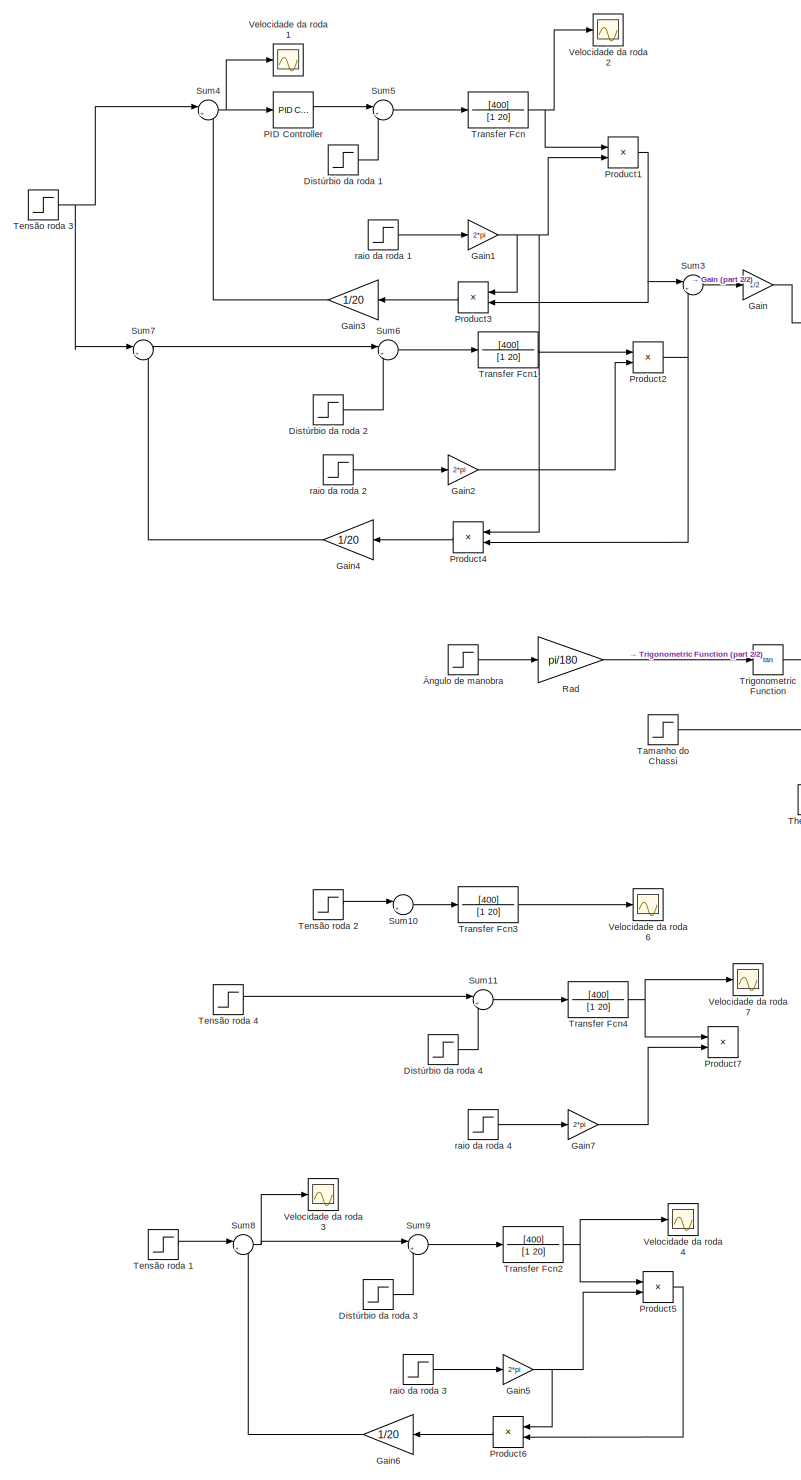
[diagram: root canvas - part 1/2, left side, full height]
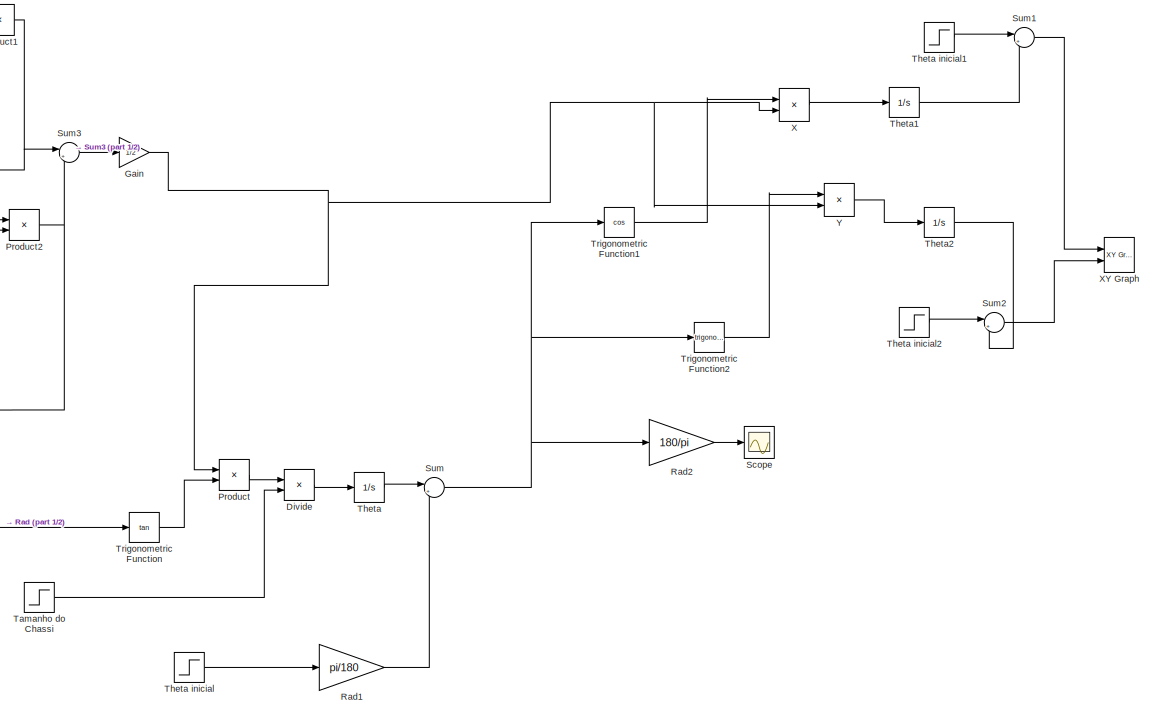
[diagram: root canvas - part 2/2, middle right region]
MODEL slx_e3606d816843
KIND model
CONFIG AbsTol = auto
CONFIG EnableMultiTasking = on
CONFIG FixedStep = auto
CONFIG MaxStep = auto
CONFIG MinStep = auto
CONFIG RelTol = 1e-3
CONFIG SampleTimeConstraint = Unconstrained
CONFIG Solver = ode45
CONFIG SolverName = ode45
CONFIG StartTime = 0.0
CONFIG StopTime = 10
BLOCK [Step] Distúrbio da roda 1
  After = 0.4
  SampleTime = 0
  Time = 0
BLOCK [Step] Distúrbio da roda 2
  After = 0
  SampleTime = 0
  Time = 0
BLOCK [Step] Distúrbio da roda 3
  After = 0
  SampleTime = 0
  Time = 0
BLOCK [Step] Distúrbio da roda 4
  After = 0
  SampleTime = 0
  Time = 0
BLOCK [Product] Divide
  Inputs = */
  Ports = [2, 1]
BLOCK [Gain] Gain
  Gain = 1/2
BLOCK [Gain] Gain1
  Gain = 2*pi
BLOCK [Gain] Gain2
  Gain = 2*pi
BLOCK [Gain] Gain3
  Gain = 1/20
BLOCK [Gain] Gain4
  Gain = 1/20
BLOCK [Gain] Gain5
  Gain = 2*pi
BLOCK [Gain] Gain6
  Gain = 1/20
BLOCK [Gain] Gain7
  Gain = 2*pi
BLOCK [Reference] PID Controller  REF=simulink/Continuous/PID Controller
  Ports = [1, 1]
  SourceBlock = simulink/Continuous/PID Controller
  SourceProductBaseCode = SL
  SourceType = PID 1dof
BLOCK [Product] Product
  Ports = [2, 1]
BLOCK [Product] Product1
  Ports = [2, 1]
BLOCK [Product] Product2
  Ports = [2, 1]
BLOCK [Product] Product3
  Inputs = /*
  Ports = [2, 1]
BLOCK [Product] Product4
  Inputs = /*
  Ports = [2, 1]
BLOCK [Product] Product5
  Ports = [2, 1]
BLOCK [Product] Product6
  Inputs = /*
  Ports = [2, 1]
BLOCK [Product] Product7
  Ports = [2, 1]
BLOCK [Gain] Rad
  Gain = pi/180
BLOCK [Gain] Rad1
  Gain = pi/180
BLOCK [Gain] Rad2
  Gain = 180/pi
BLOCK [Scope] Scope
  Floating = off
  NumInputPorts = 1
  Ports = [1]
  ScopeSpecificationString = C++SS(StrPVP('Location','[1, 49, 1601, 859]'),StrPVP('Open','off'),MxPVP('AxesTitles',54,'struct(''axes1'',''%<SignalLabel>'')'),MxPVP('ScopeGraphics',57,'struct(''FigureColor'',''[0.5 0.5 0.5]'',''AxesColor'',''[0 0 0]'',''AxesTickColor'',''[1 1 1]'',''LineColors'',''[1 1 0;1 0 1;0 1 1;1 0 0;0 1 0;0 0 1]'',''LineStyles'',''-|-|-|-|-|-'',''LineWidths'',''[0.5 0.5 0.5 0.5 0.5 0.5]'',''MarkerStyles'...<+237ch>
BLOCK [Sum] Sum
  Inputs = |++
  Ports = [2, 1]
BLOCK [Sum] Sum1
  Inputs = |++
  Ports = [2, 1]
BLOCK [Sum] Sum10
  Inputs = |+-
  Ports = [2, 1]
BLOCK [Sum] Sum11
  Inputs = |++
  Ports = [2, 1]
BLOCK [Sum] Sum2
  Inputs = |++
  Ports = [2, 1]
BLOCK [Sum] Sum3
  Inputs = |++
  Ports = [2, 1]
BLOCK [Sum] Sum4
  Inputs = |+-
  Ports = [2, 1]
BLOCK [Sum] Sum5
  Inputs = |++
  Ports = [2, 1]
BLOCK [Sum] Sum6
  Inputs = |++
  Ports = [2, 1]
BLOCK [Sum] Sum7
  Inputs = |+-
  Ports = [2, 1]
BLOCK [Sum] Sum8
  Inputs = |+-
  Ports = [2, 1]
BLOCK [Sum] Sum9
  Inputs = |++
  Ports = [2, 1]
BLOCK [Step] Tamanho do Chassi
  After = 0.44
  SampleTime = 0
  Time = 0
BLOCK [Step] Tensão roda 1
  SampleTime = 0
  Time = 0
BLOCK [Step] Tensão roda 2
  SampleTime = 0
BLOCK [Step] Tensão roda 3
  SampleTime = 0
  Time = 0
BLOCK [Step] Tensão roda 4
  SampleTime = 0
  Time = 0
BLOCK [Integrator] Theta
  Ports = [1, 1]
BLOCK [Step] Theta inicial
  After = 0
  SampleTime = 0
  Time = 0
BLOCK [Step] Theta inicial1
  After = 0
  SampleTime = 0
  Time = 0
BLOCK [Step] Theta inicial2
  After = 0
  SampleTime = 0
  Time = 0
BLOCK [Integrator] Theta1
  Ports = [1, 1]
BLOCK [Integrator] Theta2
  Ports = [1, 1]
BLOCK [TransferFcn] Transfer Fcn
  Denominator = [1 20]
  Numerator = [400]
BLOCK [TransferFcn] Transfer Fcn1
  Denominator = [1 20]
  Numerator = [400]
BLOCK [TransferFcn] Transfer Fcn2
  Denominator = [1 20]
  Numerator = [400]
BLOCK [TransferFcn] Transfer Fcn3
  Denominator = [1 20]
  Numerator = [400]
BLOCK [TransferFcn] Transfer Fcn4
  Denominator = [1 20]
  Numerator = [400]
BLOCK [Trigonometry] Trigonometric Function
  Operator = tan
  Ports = [1, 1]
BLOCK [Trigonometry] Trigonometric Function1
  Operator = cos
  Ports = [1, 1]
BLOCK [Trigonometry] Trigonometric Function2
  Ports = [1, 1]
BLOCK [Scope] Velocidade da roda 1
  Floating = off
  NumInputPorts = 1
  Ports = [1]
  ScopeSpecificationString = Simulink.scopes.TimeScopeBlockCfg('CurrentConfiguration', extmgr.ConfigurationSet(extmgr.Configuration('Core','General UI',true),extmgr.Configuration('Core','Source UI',true),extmgr.Configuration('Sources','WiredSimulink',true,'DataLoggingVariableName','ScopeData1'),extmgr.Configuration('Visuals','Time Domain',true,'SerializedDisplays',{struct('MinYLimReal','-0.12487','MaxYLimReal','1.12499','YLab...<+1716ch>
BLOCK [Scope] Velocidade da roda 2
  Floating = off
  NumInputPorts = 1
  Ports = [1]
  ScopeSpecificationString = Simulink.scopes.TimeScopeBlockCfg('CurrentConfiguration', extmgr.ConfigurationSet(extmgr.Configuration('Core','General UI',true),extmgr.Configuration('Core','Source UI',true),extmgr.Configuration('Sources','WiredSimulink',true,'DataLoggingVariableName','ScopeData2'),extmgr.Configuration('Visuals','Time Domain',true,'SerializedDisplays',{struct('MinYLimReal','-2.4997','MaxYLimReal','22.49733','YLab...<+1751ch>
BLOCK [Scope] Velocidade da roda 3
  Floating = off
  NumInputPorts = 1
  Ports = [1]
  ScopeSpecificationString = Simulink.scopes.TimeScopeBlockCfg('CurrentConfiguration', extmgr.ConfigurationSet(extmgr.Configuration('Core','General UI',true),extmgr.Configuration('Core','Source UI',true),extmgr.Configuration('Sources','WiredSimulink',true,'DataLoggingVariableName','ScopeData2'),extmgr.Configuration('Visuals','Time Domain',true,'SerializedDisplays',{struct('MinYLimReal','0.4375','MaxYLimReal','1.0625','YLabelR...<+1731ch>
BLOCK [Scope] Velocidade da roda 4
  Floating = off
  NumInputPorts = 1
  Ports = [1]
  ScopeSpecificationString = Simulink.scopes.TimeScopeBlockCfg('CurrentConfiguration', extmgr.ConfigurationSet(extmgr.Configuration('Core','General UI',true),extmgr.Configuration('Core','Source UI',true),extmgr.Configuration('Sources','WiredSimulink',true,'DataLoggingVariableName','ScopeData3'),extmgr.Configuration('Visuals','Time Domain',true,'SerializedDisplays',{struct('MinYLimReal','9.87798','MaxYLimReal','10.11365','YLab...<+1771ch>
BLOCK [Scope] Velocidade da roda 6
  Floating = off
  NumInputPorts = 1
  Ports = [1]
  ScopeSpecificationString = Simulink.scopes.TimeScopeBlockCfg('CurrentConfiguration', extmgr.ConfigurationSet(extmgr.Configuration('Core','General UI',true),extmgr.Configuration('Core','Source UI',true),extmgr.Configuration('Sources','WiredSimulink',true,'DataLoggingVariableName','ScopeData5'),extmgr.Configuration('Visuals','Time Domain',true,'SerializedDisplays',{struct('MinYLimReal','-0.000011','MaxYLimReal','0.000057','YL...<+1777ch>
BLOCK [Scope] Velocidade da roda 7
  Floating = off
  NumInputPorts = 1
  Ports = [1]
  ScopeSpecificationString = Simulink.scopes.TimeScopeBlockCfg('CurrentConfiguration', extmgr.ConfigurationSet(extmgr.Configuration('Core','General UI',true),extmgr.Configuration('Core','Source UI',true),extmgr.Configuration('Sources','WiredSimulink',true,'DataLoggingVariableName','ScopeData6'),extmgr.Configuration('Visuals','Time Domain',true,'SerializedDisplays',{struct('MinYLimReal','-1.4868','MaxYLimReal','13.38121','YLab...<+1701ch>
BLOCK [Product] X
  Ports = [2, 1]
BLOCK [Reference] XY Graph  REF=simulink/Sinks/XY Graph
  Ports = [2]
  SourceBlock = simulink/Sinks/XY Graph
  SourceProductBaseCode = SL
  SourceType = XY scope.
BLOCK [Product] Y
  Ports = [2, 1]
BLOCK [Step] raio da roda 1
  After = 0.080
  SampleTime = 0
  Time = 0
BLOCK [Step] raio da roda 2
  After = 0.080
  SampleTime = 0
  Time = 0
BLOCK [Step] raio da roda 3
  After = 0.080
  SampleTime = 0
  Time = 0
BLOCK [Step] raio da roda 4
  After = 0.080
  SampleTime = 0
  Time = 0
BLOCK [Step] Ângulo de manobra
  After = 30
  SampleTime = 0
  Time = 0
LINE Distúrbio da roda 1:1 -> Sum5:2
LINE Distúrbio da roda 2:1 -> Sum6:2
LINE Distúrbio da roda 3:1 -> Sum9:2
LINE Distúrbio da roda 4:1 -> Sum11:2
LINE Divide:1 -> Theta:1
NET Gain1:1 -> Product1:2, Product3:1, Product4:1
LINE Gain2:1 -> Product2:2
LINE Gain3:1 -> Sum4:2
LINE Gain4:1 -> Sum7:2
NET Gain5:1 -> Product5:2, Product6:1
LINE Gain6:1 -> Sum8:2
LINE Gain7:1 -> Product7:2
NET Gain:1 -> Product:1, X:2, Y:2
LINE PID Controller:1 -> Sum5:1
NET Product1:1 -> Product3:2, Sum3:1
NET Product2:1 -> Product4:2, Sum3:2
LINE Product3:1 -> Gain3:1
LINE Product4:1 -> Gain4:1
LINE Product5:1 -> Product6:2
LINE Product6:1 -> Gain6:1
LINE Product:1 -> Divide:1
LINE Rad1:1 -> Sum:2
LINE Rad2:1 -> Scope:1
LINE Rad:1 -> Trigonometric Function:1
LINE Sum10:1 -> Transfer Fcn3:1
LINE Sum11:1 -> Transfer Fcn4:1
LINE Sum1:1 -> XY Graph:1
LINE Sum2:1 -> XY Graph:2
LINE Sum3:1 -> Gain:1
NET Sum4:1 -> PID Controller:1, Velocidade da roda 1:1
LINE Sum5:1 -> Transfer Fcn:1
LINE Sum6:1 -> Transfer Fcn1:1
LINE Sum7:1 -> Sum6:1
NET Sum8:1 -> Sum9:1, Velocidade da roda 3:1
LINE Sum9:1 -> Transfer Fcn2:1
NET Sum:1 -> Rad2:1, Trigonometric Function1:1, Trigonometric Function2:1
LINE Tamanho do Chassi:1 -> Divide:2
LINE Tensão roda 1:1 -> Sum8:1
LINE Tensão roda 2:1 -> Sum10:1
NET Tensão roda 3:1 -> Sum4:1, Sum7:1
LINE Tensão roda 4:1 -> Sum11:1
LINE Theta inicial1:1 -> Sum1:1
LINE Theta inicial2:1 -> Sum2:1
LINE Theta inicial:1 -> Rad1:1
LINE Theta1:1 -> Sum1:2
LINE Theta2:1 -> Sum2:2
LINE Theta:1 -> Sum:1
LINE Transfer Fcn1:1 -> Product2:1
NET Transfer Fcn2:1 -> Product5:1, Velocidade da roda 4:1
LINE Transfer Fcn3:1 -> Velocidade da roda 6:1
NET Transfer Fcn4:1 -> Product7:1, Velocidade da roda 7:1
NET Transfer Fcn:1 -> Product1:1, Velocidade da roda 2:1
LINE Trigonometric Function1:1 -> X:1
LINE Trigonometric Function2:1 -> Y:1
LINE Trigonometric Function:1 -> Product:2
LINE X:1 -> Theta1:1
LINE Y:1 -> Theta2:1
LINE raio da roda 1:1 -> Gain1:1
LINE raio da roda 2:1 -> Gain2:1
LINE raio da roda 3:1 -> Gain5:1
LINE raio da roda 4:1 -> Gain7:1
LINE Ângulo de manobra:1 -> Rad:1
note: NET lines group one-source signal fan-out (src -> all destinations, sorted); 1:1 wires keep LINE
